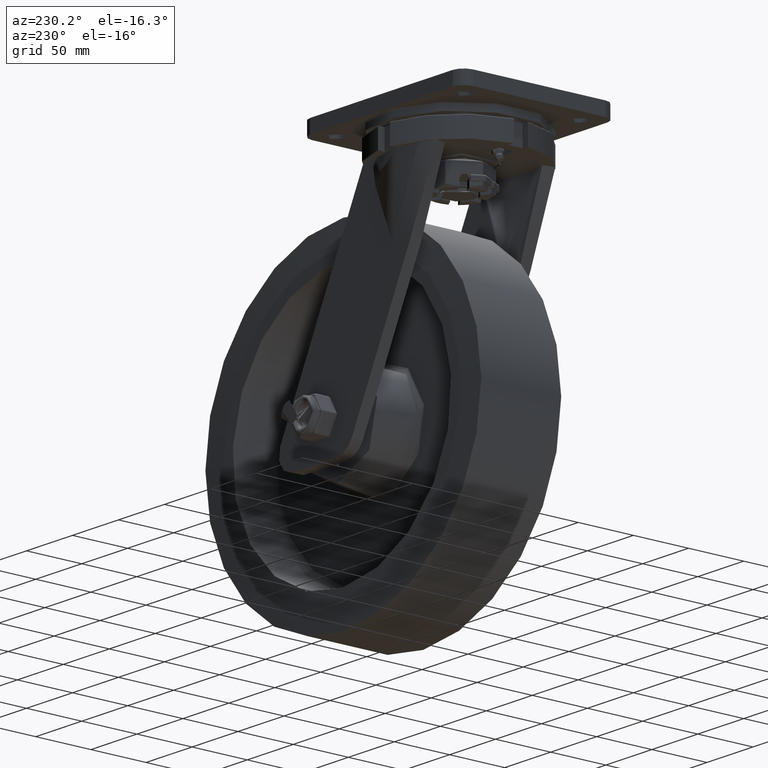
[diagram: clean part render]
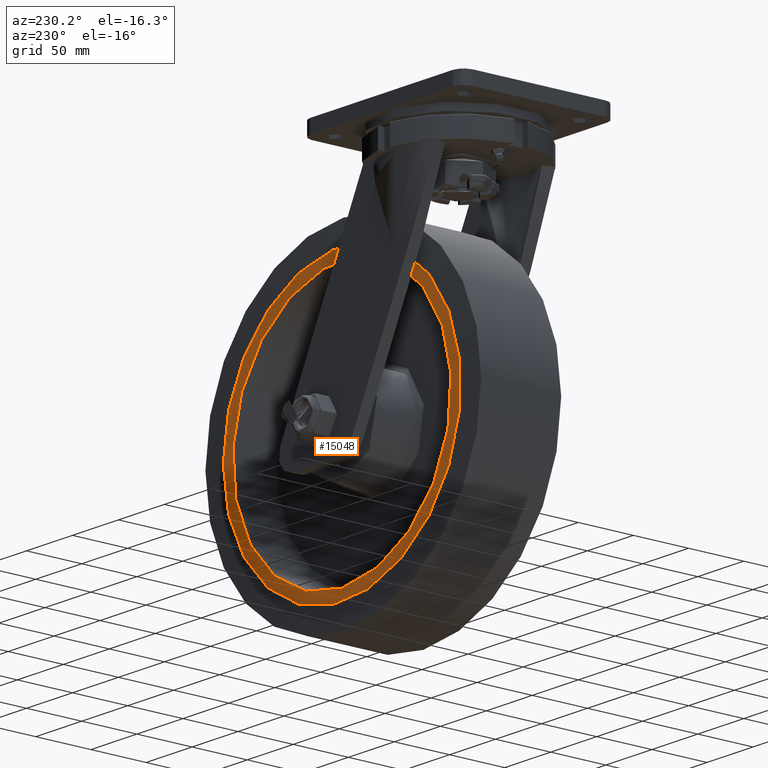
[diagram: same view with one face highlighted and labeled with its STEP entity id]
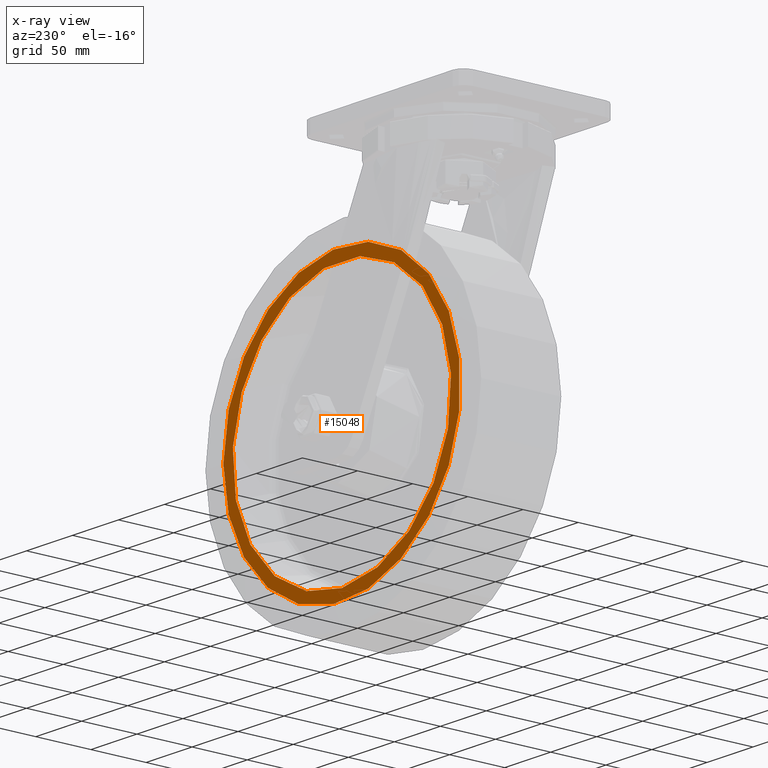
[diagram: x-ray of the same camera — body ghosted, the highlighted face saturated]
A machine part, auxiliary view. The second image highlights one B-rep face of the part: STEP entity #15048.
The next image is the same camera in x-ray: the body ghosted, the highlighted face saturated — about 0% of this face is hidden behind the body in this view.
In plain terms, the highlighted planar face has unit normal (-0, 1, 0).
Its self-contained STEP definition (entity closure, byte-faithful):
#420=FACE_BOUND('',#2329,.T.);
#579=PLANE('',#16354);
#1402=FACE_OUTER_BOUND('',#2328,.T.);
#2328=EDGE_LOOP('',(#11596));
#2329=EDGE_LOOP('',(#11597));
#3156=CIRCLE('',#16308,129.);
#3179=CIRCLE('',#16340,119.);
#6561=VERTEX_POINT('',#44095);
#6582=VERTEX_POINT('',#44155);
#8360=EDGE_CURVE('',#6561,#6561,#3156,.T.);
#8391=EDGE_CURVE('',#6582,#6582,#3179,.T.);
#11596=ORIENTED_EDGE('',*,*,#8360,.T.);
#11597=ORIENTED_EDGE('',*,*,#8391,.F.);
#15048=ADVANCED_FACE('',(#1402,#420),#579,.T.);
#16308=AXIS2_PLACEMENT_3D('',#44096,#18602,#18603);
#16340=AXIS2_PLACEMENT_3D('',#44157,#18674,#18675);
#16354=AXIS2_PLACEMENT_3D('',#44173,#18702,#18703);
#18602=DIRECTION('center_axis',(-3.49148336110938E-15,1.,0.));
#18603=DIRECTION('ref_axis',(-1.,-3.49148336110938E-15,0.));
#18674=DIRECTION('center_axis',(-3.49148336110938E-15,1.,0.));
#18675=DIRECTION('ref_axis',(-1.,-3.49148336110938E-15,0.));
#18702=DIRECTION('center_axis',(-3.49148336110938E-15,1.,0.));
#18703=DIRECTION('ref_axis',(-1.,-3.49148336110938E-15,0.));
#44095=CARTESIAN_POINT('',(129.,37.5000000000004,1.57979437090009E-14));
#44096=CARTESIAN_POINT('Origin',(-1.23991732137695E-13,37.5,0.));
#44155=CARTESIAN_POINT('',(-1.38565029047548E-13,37.5,-119.));
#44157=CARTESIAN_POINT('Origin',(-1.23991732137695E-13,37.5,0.));
#44173=CARTESIAN_POINT('Origin',(-124.,37.4999999999996,0.));